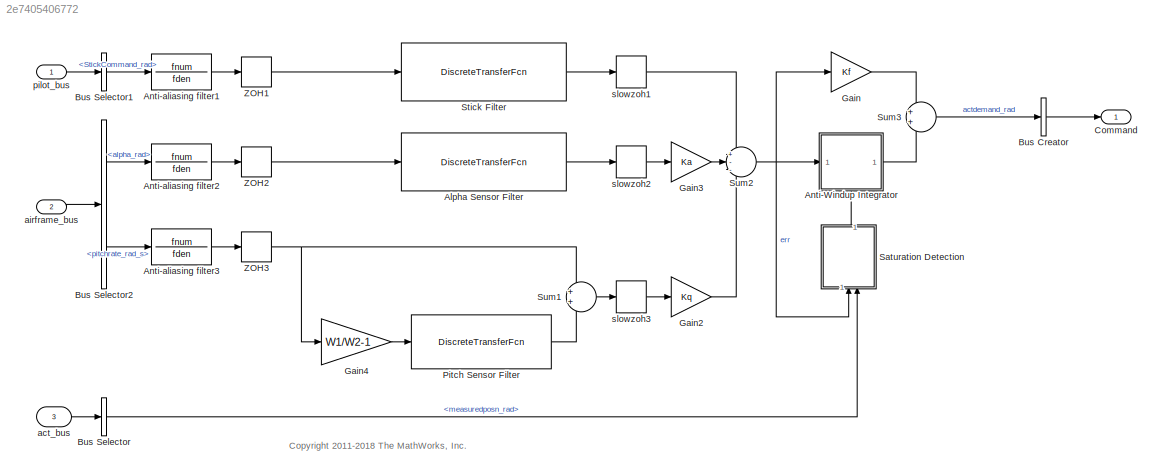
MODEL slx_2e7405406772
KIND model
CONFIG AbsTol = auto
CONFIG EnableMultiTasking = on
CONFIG FixedStep = auto
CONFIG MaxStep = 0.1
CONFIG MinStep = auto
CONFIG RelTol = 1e-3
CONFIG SampleTimeConstraint = Unconstrained
CONFIG SolverName = VariableStepAuto
CONFIG StartTime = 0.0
CONFIG StopTime = 10.0
BLOCK [DiscreteTransferFcn] Alpha Sensor Filter
  Denominator = [1 -exp(-deltat1/Tal)]
  InputPortMap = u0
  Numerator = [1-exp(-deltat1/Tal)]
  SampleTime = deltat1
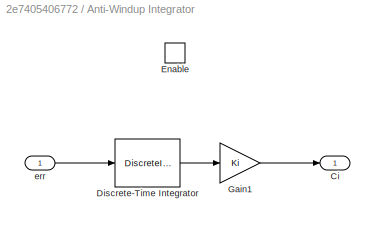
BLOCK [SubSystem] Anti-Windup Integrator
  NameLocation = top
  RTWSystemCode = Inline
  TreatAsAtomicUnit = on
BLOCK [Outport] Anti-Windup Integrator/Ci
  InitialOutput = 0
  VectorParamsAs1DForOutWhenUnconnected = off
BLOCK [DiscreteIntegrator] Anti-Windup Integrator/Discrete-Time Integrator
  ICPrevOutput = DiscIntNeverNeededParam
  ICPrevScaledInput = DiscIntNeverNeededParam
  IntegratorMethod = Integration: Trapezoidal
  SampleTime = deltat
BLOCK [EnablePort] Anti-Windup Integrator/Enable
BLOCK [Gain] Anti-Windup Integrator/Gain1
  Gain = Ki
  OutDataTypeStr = Inherit: Same as input
  ParamDataTypeStr = Inherit: Same as input
  SaturateOnIntegerOverflow = on
BLOCK [Inport] Anti-Windup Integrator/err
BLOCK [TransferFcn] Anti-aliasing filter1
  AttributesFormatString = %<Description>
  Denominator = fden
  Numerator = fnum
BLOCK [TransferFcn] Anti-aliasing filter2
  AttributesFormatString = %<Description>
  Denominator = fden
  Numerator = fnum
BLOCK [TransferFcn] Anti-aliasing filter3
  AttributesFormatString = %<Description>
  Denominator = fden
  Numerator = fnum
BLOCK [BusCreator] Bus Creator
  DisplayOption = bar
  InheritFromInputs = on
  Inputs = 1
  OutDataTypeStr = Bus: CONTROL_BUS
BLOCK [BusSelector] Bus Selector
  OutputSignals = measuredposn_rad
BLOCK [BusSelector] Bus Selector1
  OutputSignals = StickCommand_rad
BLOCK [BusSelector] Bus Selector2
  OutputSignals = alpha_rad,pitchrate_rad_s
BLOCK [Outport] Command
  OutDataTypeStr = Bus: CONTROL_BUS
  VectorParamsAs1DForOutWhenUnconnected = off
BLOCK [Gain] Gain
  Gain = Kf
  OutDataTypeStr = Inherit: Same as input
  ParamDataTypeStr = Inherit: Same as input
  SaturateOnIntegerOverflow = on
BLOCK [Gain] Gain2
  Gain = Kq
  NameLocation = top
  OutDataTypeStr = Inherit: Same as input
  ParamDataTypeStr = Inherit: Same as input
  SaturateOnIntegerOverflow = on
BLOCK [Gain] Gain3
  Gain = Ka
  NameLocation = top
  OutDataTypeStr = Inherit: Same as input
  ParamDataTypeStr = Inherit: Same as input
  SaturateOnIntegerOverflow = on
BLOCK [Gain] Gain4
  Gain = W1/W2-1
  NameLocation = top
  OutDataTypeStr = Inherit: Same as input
  ParamDataTypeStr = Inherit: Same as input
  SaturateOnIntegerOverflow = on
BLOCK [DiscreteTransferFcn] Pitch Sensor Filter
  Denominator = [1 -exp(-W2*deltat1)]
  InputPortMap = u0
  Numerator = [1-exp(-W2*deltat1)]
  SampleTime = deltat1
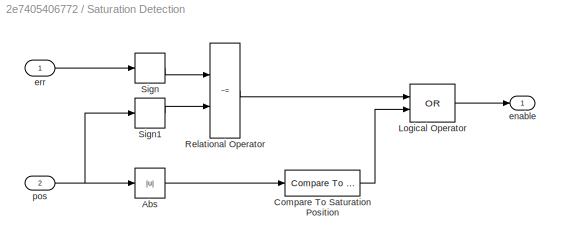
BLOCK [SubSystem] Saturation Detection
  NameLocation = right
BLOCK [Abs] Saturation Detection/Abs
  SaturateOnIntegerOverflow = off
  ZeroCross = off
BLOCK [Reference] Saturation Detection/Compare To Saturation Position  REF=simulink/Logic and Bit
Operations/Compare
To Constant
  SourceBlock = simulink/Logic and Bit\nOperations/Compare\nTo Constant
  SourceType = Compare To Constant
BLOCK [Logic] Saturation Detection/Logical Operator
  AllPortsSameDT = off
  Operator = OR
  OutDataTypeStr = boolean
BLOCK [RelationalOperator] Saturation Detection/Relational Operator
  InputSameDT = off
  Operator = ~=
  OutDataTypeStr = boolean
  ZeroCross = off
BLOCK [Signum] Saturation Detection/Sign
  ZeroCross = off
BLOCK [Signum] Saturation Detection/Sign1
  NameLocation = top
  ZeroCross = off
BLOCK [Outport] Saturation Detection/enable
  VectorParamsAs1DForOutWhenUnconnected = off
BLOCK [Inport] Saturation Detection/err
BLOCK [Inport] Saturation Detection/pos
  Port = 2
BLOCK [DiscreteTransferFcn] Stick Filter
  Denominator = [1 -exp(-deltat1/Ts)]
  InputPortMap = u0
  Numerator = [1-exp(-deltat1/Ts)]
  SampleTime = deltat1
BLOCK [Sum] Sum1
  InputSameDT = on
  Inputs = 2
  OutDataTypeStr = Inherit: Same as first input
  SaturateOnIntegerOverflow = on
BLOCK [Sum] Sum2
  InputSameDT = on
  Inputs = +--
  OutDataTypeStr = Inherit: Same as first input
  SaturateOnIntegerOverflow = on
BLOCK [Sum] Sum3
  InputSameDT = on
  Inputs = 2
  OutDataTypeStr = Inherit: Same as first input
  SaturateOnIntegerOverflow = on
BLOCK [ZeroOrderHold] ZOH1
  SampleTime = deltat1
BLOCK [ZeroOrderHold] ZOH2
  SampleTime = deltat1
BLOCK [ZeroOrderHold] ZOH3
  SampleTime = deltat1
BLOCK [Inport] act_bus
  OutDataTypeStr = Bus: ACT_BUS
  Port = 3
BLOCK [Inport] airframe_bus
  OutDataTypeStr = Bus: AIRFRAME_BUS
  Port = 2
BLOCK [Inport] pilot_bus
  NameLocation = top
  OutDataTypeStr = Bus: PILOT_BUS
BLOCK [ZeroOrderHold] slowzoh1
  SampleTime = deltat
BLOCK [ZeroOrderHold] slowzoh2
  SampleTime = deltat
BLOCK [ZeroOrderHold] slowzoh3
  SampleTime = deltat
ANNOTATION (root): <copyright redacted>
LINE Alpha Sensor Filter:1 -> slowzoh2:1
LINE Anti-Windup Integrator/Discrete-Time Integrator:1 -> Anti-Windup Integrator/Gain1:1
LINE Anti-Windup Integrator/Gain1:1 -> Anti-Windup Integrator/Ci:1
LINE Anti-Windup Integrator/err:1 -> Anti-Windup Integrator/Discrete-Time Integrator:1
LINE Anti-Windup Integrator:1 -> Sum3:2
LINE Anti-aliasing filter1:1 -> ZOH1:1
LINE Anti-aliasing filter2:1 -> ZOH2:1
LINE Anti-aliasing filter3:1 -> ZOH3:1
LINE Bus Creator:1 -> Command:1
LINE Bus Selector1:1 -> Anti-aliasing filter1:1
LINE Bus Selector2:1 -> Anti-aliasing filter2:1
LINE Bus Selector2:2 -> Anti-aliasing filter3:1
LINE Bus Selector:1 -> Saturation Detection:2
LINE Gain2:1 -> Sum2:3
LINE Gain3:1 -> Sum2:2
LINE Gain4:1 -> Pitch Sensor Filter:1
LINE Gain:1 -> Sum3:1
LINE Pitch Sensor Filter:1 -> Sum1:2
LINE Saturation Detection/Abs:1 -> Saturation Detection/Compare To Saturation Position:1
LINE Saturation Detection/Compare To Saturation Position:1 -> Saturation Detection/Logical Operator:2
LINE Saturation Detection/Logical Operator:1 -> Saturation Detection/enable:1
LINE Saturation Detection/Relational Operator:1 -> Saturation Detection/Logical Operator:1
LINE Saturation Detection/Sign1:1 -> Saturation Detection/Relational Operator:2
LINE Saturation Detection/Sign:1 -> Saturation Detection/Relational Operator:1
LINE Saturation Detection/err:1 -> Saturation Detection/Sign:1
NET Saturation Detection/pos:1 -> Saturation Detection/Abs:1, Saturation Detection/Sign1:1
LINE Saturation Detection:1 -> Anti-Windup Integrator:enable
LINE Stick Filter:1 -> slowzoh1:1
LINE Sum1:1 -> slowzoh3:1
NET Sum2:1 -> Anti-Windup Integrator:1, Gain:1, Saturation Detection:1
LINE Sum3:1 -> Bus Creator:1
LINE ZOH1:1 -> Stick Filter:1
LINE ZOH2:1 -> Alpha Sensor Filter:1
NET ZOH3:1 -> Gain4:1, Sum1:1
LINE act_bus:1 -> Bus Selector:1
LINE airframe_bus:1 -> Bus Selector2:1
LINE pilot_bus:1 -> Bus Selector1:1
LINE slowzoh1:1 -> Sum2:1
LINE slowzoh2:1 -> Gain3:1
LINE slowzoh3:1 -> Gain2:1
note: NET lines group one-source signal fan-out (src -> all destinations, sorted); 1:1 wires keep LINE
